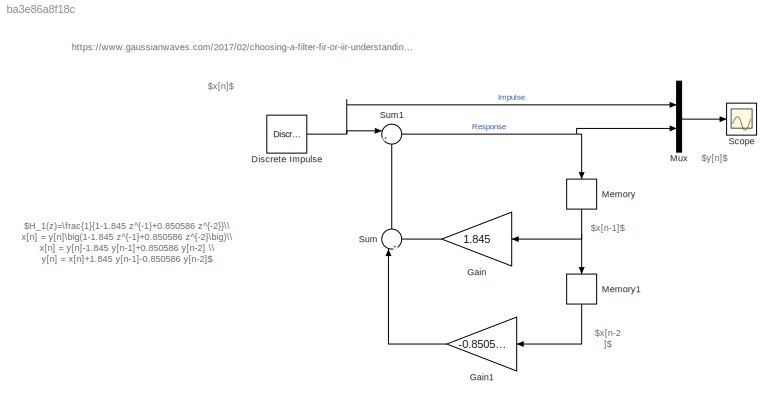
MODEL slx_ba3e86a8f18c
KIND model
CONFIG AbsTol = auto
CONFIG EnableMultiTasking = off
CONFIG FixedStep = 1
CONFIG MaxStep = auto
CONFIG MinStep = auto
CONFIG RelTol = 1e-3
CONFIG SampleTimeConstraint = Unconstrained
CONFIG SolverName = FixedStepDiscrete
CONFIG StartTime = 0.0
CONFIG StopTime = 65
BLOCK [Reference] Discrete Impulse  REF=dspsrcs4/Discrete 
Impulse
  SourceBlock = dspsrcs4/Discrete \nImpulse
  SourceType = Discrete Impulse
BLOCK [Gain] Gain
  Gain = 1.845
  NameLocation = top
BLOCK [Gain] Gain1
  Gain = -0.850586
  NameLocation = top
BLOCK [Memory] Memory
  NameLocation = left
BLOCK [Memory] Memory1
  NameLocation = left
BLOCK [Mux] Mux
  DisplayOption = bar
  Inputs = 2
BLOCK [Scope] Scope
  ActiveDisplayYMaximum = 5.6155922614062117
  ActiveDisplayYMinimum = -0.62395469571180118
  Floating = off
  GraphicalSettings = {"Style":{"BackgroundColor":[0.12941176470588237,0.12941176470588237,0.12941176470588237],"AxesColor":[0.07058823529411765,0.07058823529411765,0.07058823529411765],"LabelsColor":[0.8509803921568627,0.8509803921568627,0.8509803921568627],"PreserveColors":false,"Visible":[true,true],"LineStyle":["-","-"],"LineWidth":[1.5,1.5],"BarWidth":[0.9,0.9],"LineColor":["auto","auto"],"LineFaceAlpha":[1,1],"Li...<+2112ch>
  MultipleDisplayCache = [{"MaxYLimMag":5.6155922614062117,"MaxYLimReal":5.6155922614062117,"MinYLimMag":0,"MinYLimReal":-0.62395469571180118,"PlotAsMagnitudePhase":false,"ShowGrid":true,"ShowLegend":false,"Title":"%<SignalLabel>","YLabel":""}]
  NumInputPorts = 1
  ScopeFrameLocation = window
  WasSavedAsWebScope = on
  WindowPosition = [403.000000,323.000000,560.000000,420.000000,]
BLOCK [Sum] Sum
  Inputs = |++
  NameLocation = right
BLOCK [Sum] Sum1
  Inputs = |++
ANNOTATION (root): https://www.gaussianwaves.com/2017/02/choosing-a-filter-fir-or-iir-understanding-the-design-perspective/
ANNOTATION (root): $x[n-1]$
ANNOTATION (root): $x[n-2 ]$
ANNOTATION (root): $x[n]$
ANNOTATION (root): $y[n]$
ANNOTATION (root): $H_1(z)=\frac{1}{1-1.845 z^{-1}+0.850586 z^{-2}}\\ x[n] = y[n]\big(1-1.845 z^{-1}+0.850586 z^{-2}\big)\\ x[n] = y[n]-1.845 y[n-1]+0.850586 y[n-2] \\ y[n] = x[n]+1.845 y[n-1]-0.850586 y[n-2]$
NET Discrete Impulse:1 -> Mux:1, Sum1:1
LINE Gain1:1 -> Sum:1
LINE Gain:1 -> Sum:2
LINE Memory1:1 -> Gain1:1
NET Memory:1 -> Gain:1, Memory1:1
LINE Mux:1 -> Scope:1
NET Sum1:1 -> Memory:1, Mux:2
LINE Sum:1 -> Sum1:2
note: NET lines group one-source signal fan-out (src -> all destinations, sorted); 1:1 wires keep LINE
